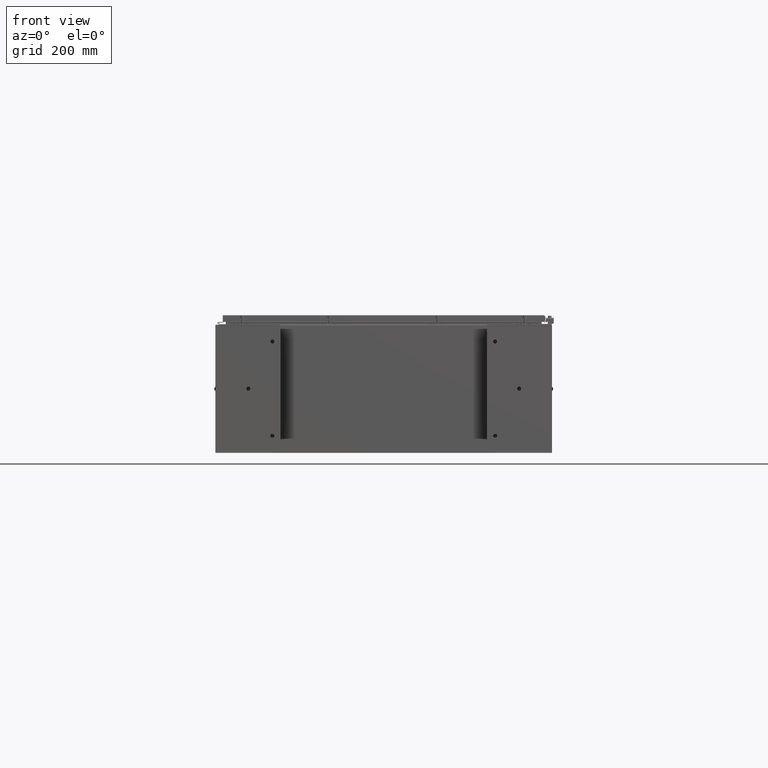
[diagram: clean part render]
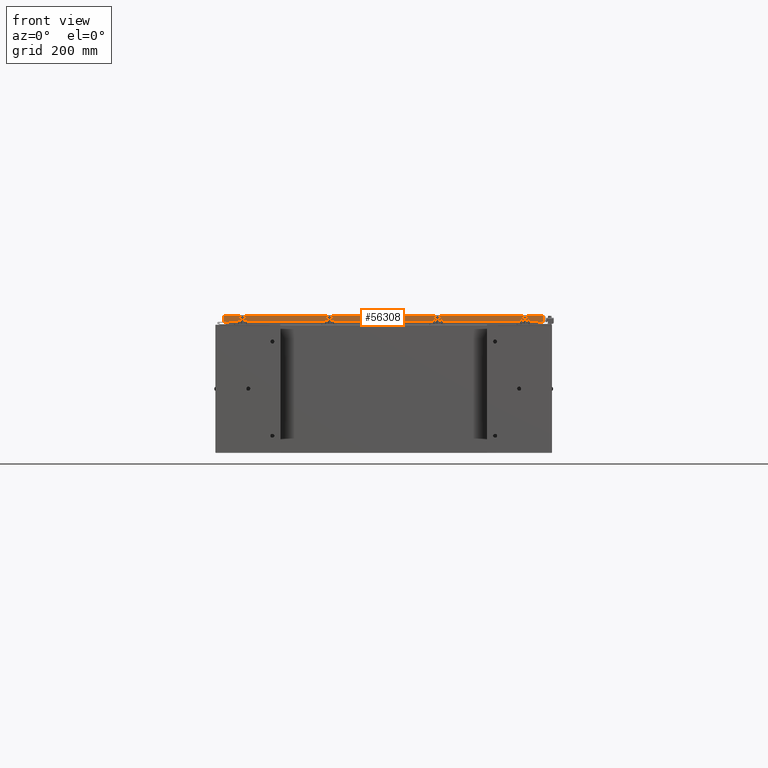
[diagram: same view with one face highlighted and labeled with its STEP entity id]
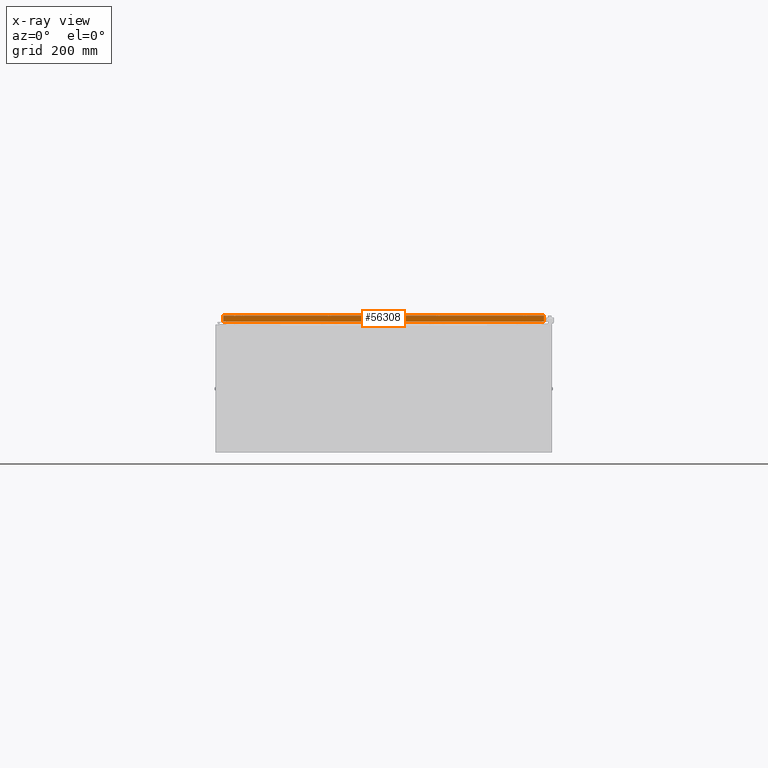
[diagram: x-ray of the same camera — body ghosted, the highlighted face saturated]
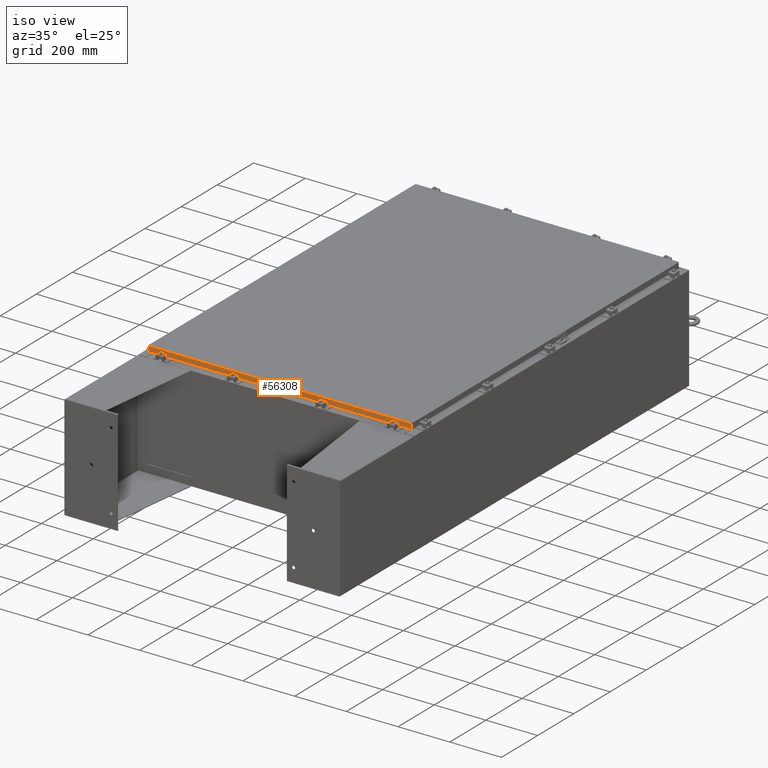
[diagram: same view with one face highlighted and labeled with its STEP entity id]
A machine part, front view. The second image highlights one B-rep face of the part: STEP entity #56308.
The next image is the same camera in x-ray: the body ghosted, the highlighted face saturated — about 0% of this face is hidden behind the body in this view.
A second angle (iso view) of the same face is appended — the face is thin or edge-on in the first view.
In plain terms, the highlighted planar face has unit normal (-0, 1, -0).
Its self-contained STEP definition (entity closure, byte-faithful):
#475 = ORIENTED_EDGE ( 'NONE', *, *, #62401, .F. ) ;
#2207 = VECTOR ( 'NONE', #37714, 39.37007874015748100 ) ;
#4003 = DIRECTION ( 'NONE',  ( -0.0000000000000000000, -5.637761885544720300E-015, -1.000000000000000000 ) ) ;
#7414 = DIRECTION ( 'NONE',  ( 0.0000000000000000000, -5.637761885544720300E-015, -1.000000000000000000 ) ) ;
#8301 = VECTOR ( 'NONE', #4003, 39.37007874015748100 ) ;
#9026 = PLANE ( 'NONE',  #17288 ) ;
#11484 = DIRECTION ( 'NONE',  ( -1.000000000000000000, 8.758115402030108600E-047, 1.224555829414202900E-016 ) ) ;
#11681 = VECTOR ( 'NONE', #7414, 39.37007874015748100 ) ;
#13300 = LINE ( 'NONE', #65829, #8301 ) ;
#14000 = VECTOR ( 'NONE', #28419, 39.37007874015748100 ) ;
#14612 = VECTOR ( 'NONE', #11484, 39.37007874015748100 ) ;
#16817 = CARTESIAN_POINT ( 'NONE',  ( 20.07799999999999600, -29.09399999999999400, -0.8499999999999996400 ) ) ;
#17288 = AXIS2_PLACEMENT_3D ( 'NONE', #45774, #19653, #56124 ) ;
#18380 = CARTESIAN_POINT ( 'NONE',  ( 19.98915786437626400, -29.09399999999999100, -0.08769999999999549000 ) ) ;
#19653 = DIRECTION ( 'NONE',  ( -6.903754181792993900E-031, 1.000000000000000000, -5.637761885544720300E-015 ) ) ;
#20889 = VERTEX_POINT ( 'NONE', #38774 ) ;
#25526 = ORIENTED_EDGE ( 'NONE', *, *, #65527, .T. ) ;
#28039 = LINE ( 'NONE', #59264, #55748 ) ;
#28419 = DIRECTION ( 'NONE',  ( -1.000000000000000000, 0.0000000000000000000, 0.0000000000000000000 ) ) ;
#28775 = CARTESIAN_POINT ( 'NONE',  ( -19.23915786437628100, -29.09399999999999100, -0.8499999999999999800 ) ) ;
#28800 = EDGE_CURVE ( 'NONE', #41623, #51877, #28039, .T. ) ;
#30171 = LINE ( 'NONE', #32375, #2207 ) ;
#32375 = CARTESIAN_POINT ( 'NONE',  ( 20.07799999999999600, -29.09399999999999100, -0.08769999999999547600 ) ) ;
#33694 = CARTESIAN_POINT ( 'NONE',  ( 19.23915786437626400, -29.09399999999999100, -0.8499999999999999800 ) ) ;
#34261 = VERTEX_POINT ( 'NONE', #28775 ) ;
#35568 = VERTEX_POINT ( 'NONE', #18380 ) ;
#37714 = DIRECTION ( 'NONE',  ( 1.000000000000000000, 6.903754181792994800E-031, -3.874626726793560400E-045 ) ) ;
#38048 = LINE ( 'NONE', #38995, #11681 ) ;
#38774 = CARTESIAN_POINT ( 'NONE',  ( -19.98915786437628100, -29.09399999999999100, -0.08769999999999547600 ) ) ;
#38982 = FACE_OUTER_BOUND ( 'NONE', #67753, .T. ) ;
#38995 = CARTESIAN_POINT ( 'NONE',  ( -19.98915786437627800, -29.09399999999999100, 1.642858579540496200E-013 ) ) ;
#40427 = VERTEX_POINT ( 'NONE', #53299 ) ;
#40507 = ORIENTED_EDGE ( 'NONE', *, *, #50668, .F. ) ;
#41623 = VERTEX_POINT ( 'NONE', #51060 ) ;
#42584 = CARTESIAN_POINT ( 'NONE',  ( 19.23915786437626400, -29.09399999999999100, -0.8499999999999999800 ) ) ;
#45774 = CARTESIAN_POINT ( 'NONE',  ( 2.008578241650853100E-029, -29.09399999999999100, 1.642858579540496200E-013 ) ) ;
#49760 = ORIENTED_EDGE ( 'NONE', *, *, #28800, .F. ) ;
#50668 = EDGE_CURVE ( 'NONE', #51877, #34261, #55675, .T. ) ;
#51060 = CARTESIAN_POINT ( 'NONE',  ( 19.98915786437626400, -29.09399999999999400, -0.8499999999999996400 ) ) ;
#51877 = VERTEX_POINT ( 'NONE', #42584 ) ;
#53299 = CARTESIAN_POINT ( 'NONE',  ( -19.98915786437628100, -29.09399999999999400, -0.8499999999999947600 ) ) ;
#55675 = LINE ( 'NONE', #33694, #14000 ) ;
#55748 = VECTOR ( 'NONE', #64561, 39.37007874015748100 ) ;
#56124 = DIRECTION ( 'NONE',  ( 0.0000000000000000000, 5.637761885544720300E-015, 1.000000000000000000 ) ) ;
#56274 = LINE ( 'NONE', #16817, #14612 ) ;
#56308 = ADVANCED_FACE ( 'NONE', ( #38982 ), #9026, .F. ) ;
#57555 = EDGE_CURVE ( 'NONE', #35568, #41623, #13300, .T. ) ;
#59264 = CARTESIAN_POINT ( 'NONE',  ( 20.07799999999999600, -29.09399999999999400, -0.8499999999999996400 ) ) ;
#62401 = EDGE_CURVE ( 'NONE', #20889, #35568, #30171, .T. ) ;
#62417 = EDGE_CURVE ( 'NONE', #34261, #40427, #56274, .T. ) ;
#63679 = ORIENTED_EDGE ( 'NONE', *, *, #57555, .F. ) ;
#64561 = DIRECTION ( 'NONE',  ( -1.000000000000000000, 8.758115402030108600E-047, 1.224555829414202900E-016 ) ) ;
#65527 = EDGE_CURVE ( 'NONE', #20889, #40427, #38048, .T. ) ;
#65597 = ORIENTED_EDGE ( 'NONE', *, *, #62417, .F. ) ;
#65829 = CARTESIAN_POINT ( 'NONE',  ( 19.98915786437626400, -29.09399999999999100, -0.07469999999999958600 ) ) ;
#67753 = EDGE_LOOP ( 'NONE', ( #475, #25526, #65597, #40507, #49760, #63679 ) ) ;